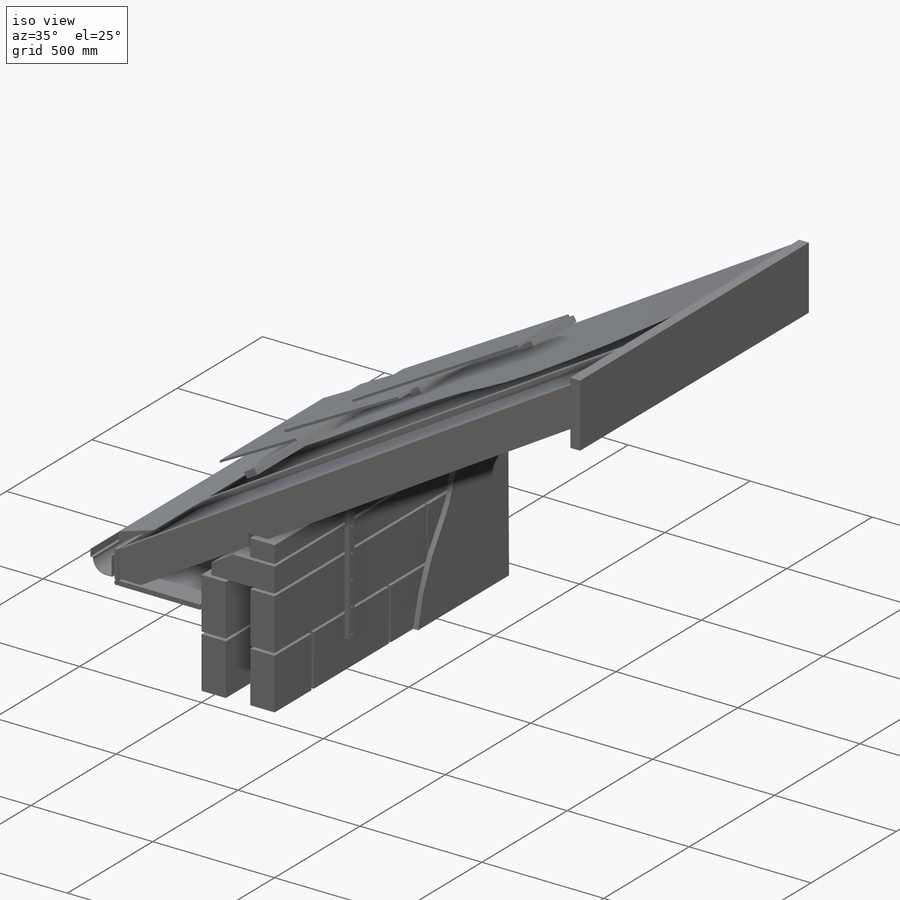
[diagram: iso view]
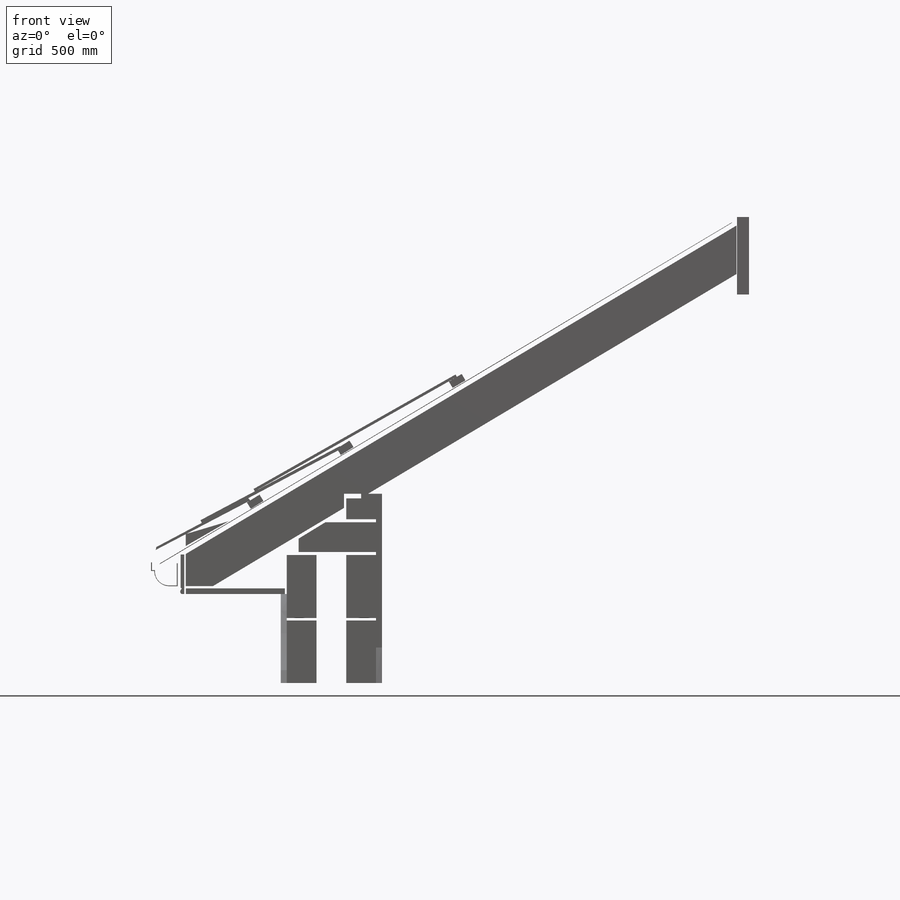
[diagram: front view]
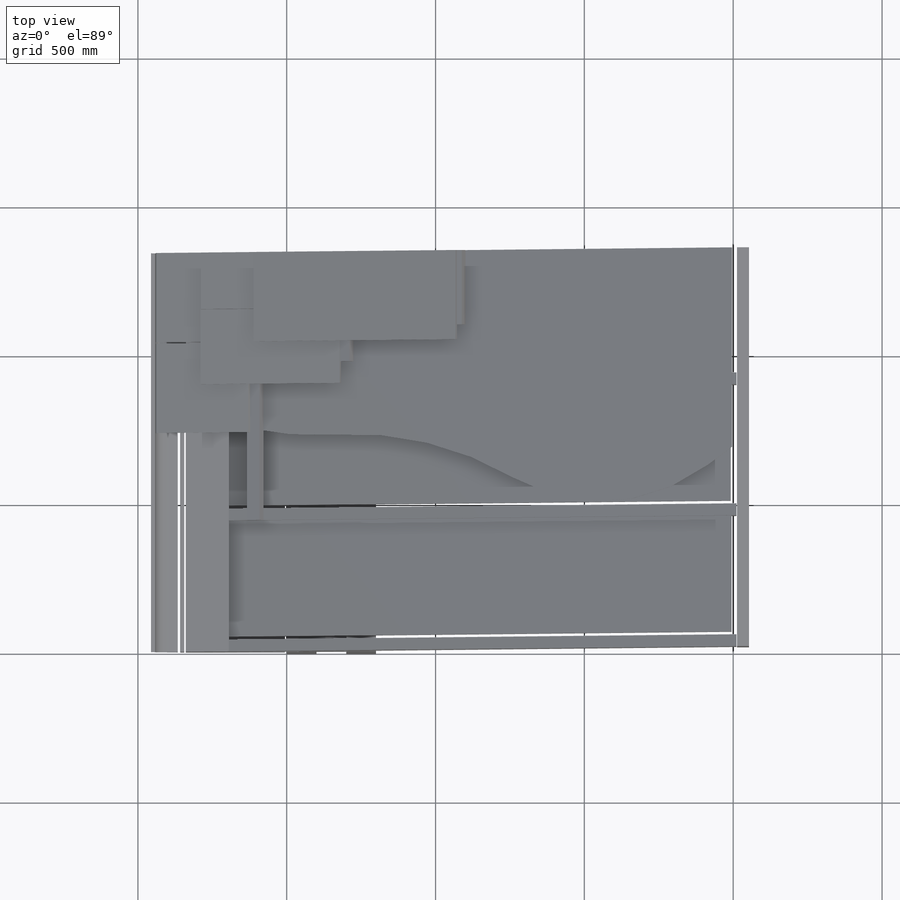
[diagram: top view]
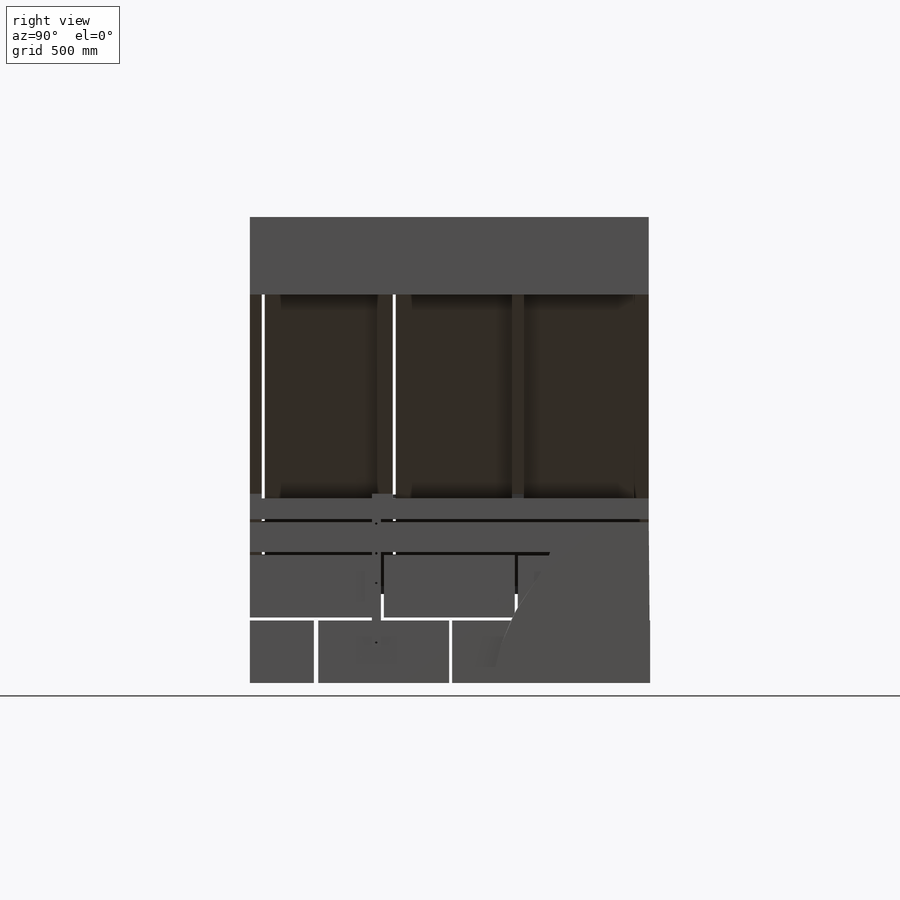
[diagram: right view]
SOLIDWORKS PART (.sldprt)
format: sldprt  version: not decoded by parser v0  size: 993,280 bytes
history: native  units: mm
features: sketch x40, extrude x36, plane x4, cut_extrude x4, material x1 (+15 scaffold rows collapsed)
feature tree (100):
  scaffold x15  (default folders/planes/origin — collapsed)
  material  "Material <not specified>"
  sketch  "Sketch1"  dims[D1=210.0mm D2=100.0mm D3=100.0mm D4=210.0mm D5=100.0mm]
  extrude  "Extrude1"  Depth=440mm
  sketch  "Sketch2"  dims[D1=100.0mm D2=210.0mm D3=100.0mm D4=100.0mm D5=210.0mm D6=10.0mm]
  extrude  "Extrude3"  Depth=215mm
  sketch  "Sketch3"  dims[D1=440.0mm D2=210.0mm]
  extrude  "Extrude4"  Depth=100mm
  sketch  "Sketch4"
  extrude  "Extrude5"  Depth=100mm
  sketch  "Sketch5"  dims[c1.D1=215.0mm c1.D2=210.0mm c1.D3=10.0mm c2.D1=440.0mm c2.D2=210.0mm c2.D3=10.0mm]
  extrude  "Extrude6"  Depth=100mm
  sketch  "Sketch6"  dims[D1=440.0mm]
  extrude  "Extrude7"  Depth=100mm
  sketch  "Sketch7"  dims[c1.D1=100.0mm c1.D2=260.0mm c1.D3=60.0mm c1.D4=200.0mm c1.D5=10.0mm c2.D3=170.0mm c2.D4=45.0mm]
  extrude  "Extrude8"  Depth=1340mm
  sketch  "Sketch8"  dims[D1=100.0mm D2=70.0mm D3=10.0mm]
  extrude  "Extrude9"  Depth=1340mm
  sketch  "Sketch10"
  extrude  "Extrude10"  Depth=40mm
  sketch  "Sketch11"  dims[D1=40.0mm D2=260.0mm]
  extrude  "Extrude11"  Depth=1340mm
  plane  "Plane1"  Offset=440mm
  sketch  "Sketch12"
  extrude  "Extrude12"  Depth=40mm
  sketch  "Sketch14"  dims[D1=440.0mm D2=210.0mm D3=10.0mm]
  extrude  "Extrude13"  Depth=100mm
  sketch  "Sketch15"
  extrude  "Extrude14"  Depth=100mm
  sketch  "Sketch16"  dims[D1=440.0mm D2=210.0mm D3=10.0mm]
  extrude  "Extrude15"  Depth=100mm
  sketch  "Sketch17"  dims[D1=210.0mm D2=215.0mm D3=10.0mm]
  extrude  "Extrude16"  Depth=100mm
  sketch  "Sketch18"
  extrude  "Extrude17"  Depth=100mm
  sketch  "Sketch19"
  extrude  "Extrude18"  Depth=100mm
  plane  "Plane2"  Offset=440mm
  sketch  "Sketch20"
  extrude  "Extrude19"  Depth=40mm
  sketch  "Sketch21"  dims[D1=~516.663642mm D2=~70.247564mm]
  extrude  "Extrude20"  Depth=30mm
  sketch  "Sketch22"  dims[D1=8.0mm D2=8.0mm D3=8.0mm D4=8.0mm D5=8.0mm D6=100.0mm D7=100.0mm D8=100.0mm D9=100.0mm]
  cut_extrude  "Cut-Extrude1"  [1 undecoded]
  sketch  "Sketch31"  dims[D1=~2238.786033mm D2=2.0mm]
  extrude  "Extrude23"  Depth=1340mm
  sketch  "Sketch32"
  cut_extrude  "Cut-Extrude9"  [1 undecoded]
  sketch  "Sketch33"  dims[D1=40.0mm D2=~151.137834mm D3=~144.722377mm]
  extrude  "Extrude24"  Depth=1340mm
  sketch  "Sketch35"  dims[D1=~132.721823mm D2=~16.734491mm D3=~332.95866mm D4=~332.95866mm]
  extrude  "Extrude25"  Depth=1340mm
  sketch  "Sketch36"  dims[D1=20.0mm D2=20.0mm D3=20.0mm]
  cut_extrude  "Cut-Extrude10"  [1 undecoded]
  sketch  "Sketch38"
  cut_extrude  "Cut-Extrude11"  Depth=1340mm
  sketch  "Sketch39"  dims[c1.D3=~46.591653mm c1.D1=3.0mm c1.D2=3.0mm c2.D3=3.0mm c2.D4=3.0mm c2.D5=3.0mm]
  extrude  "Extrude26"  Depth=1340mm
  sketch  "Sketch40"
  extrude  "Extrude27"  Depth=370mm
  sketch  "Sketch41"
  extrude  "Extrude28"  Depth=390mm
  sketch  "Sketch42"
  extrude  "Extrude29"  Depth=390mm
  sketch  "Sketch43"
  extrude  "Extrude30"  Depth=20mm
  sketch  "Sketch44"
  extrude  "Extrude31"  Depth=20mm
  plane  "Plane3"
  sketch  "Sketch47"  dims[c1.D1=50.0mm c1.D2=25.0mm c1.D3=50.0mm c2.D3=1.0deg]
  extrude  "Extrude32"  Depth=900mm
  sketch  "Sketch48"  dims[c1.D1=50.0mm c1.D2=25.0mm c1.D3=~42.891768mm c2.D3=1.0deg c2.D4=~42.889185mm c3.D4=1.0deg]
  extrude  "Extrude33"  Depth=370mm
  sketch  "Sketch49"  dims[D1=25.0mm D2=50.0mm]
  extrude  "Extrude34"  Depth=250mm
  sketch  "Sketch50"  dims[D1=350.0mm D2=10.0mm D3=10.0mm]
  extrude  "Extrude35"  Depth=300mm
  sketch  "Sketch51"  dims[D1=530.0mm D2=190.0mm]
  extrude  "Extrude36"  Depth=10mm
  plane  "Plane4"  Offset=5mm
  sketch  "Sketch54"
  extrude  "Extrude42"  Depth=300mm
  sketch  "Sketch55"  dims[D1=250.0mm D2=530.0mm]
  extrude  "Extrude43"  Depth=10mm
  sketch  "Sketch57"  dims[D1=780.0mm D2=9.0mm D3=9.0mm]
  extrude  "Extrude45"  Depth=300mm
decode coverage: 62 of 80 modeling features carry decoded parameters
note: ~ marks probable driven/reference dimensions
note: 3 parameter values undecoded
summary: no parameter record found for 3 features
note: suppression state not decoded; provenance and decode notes live in map.json
